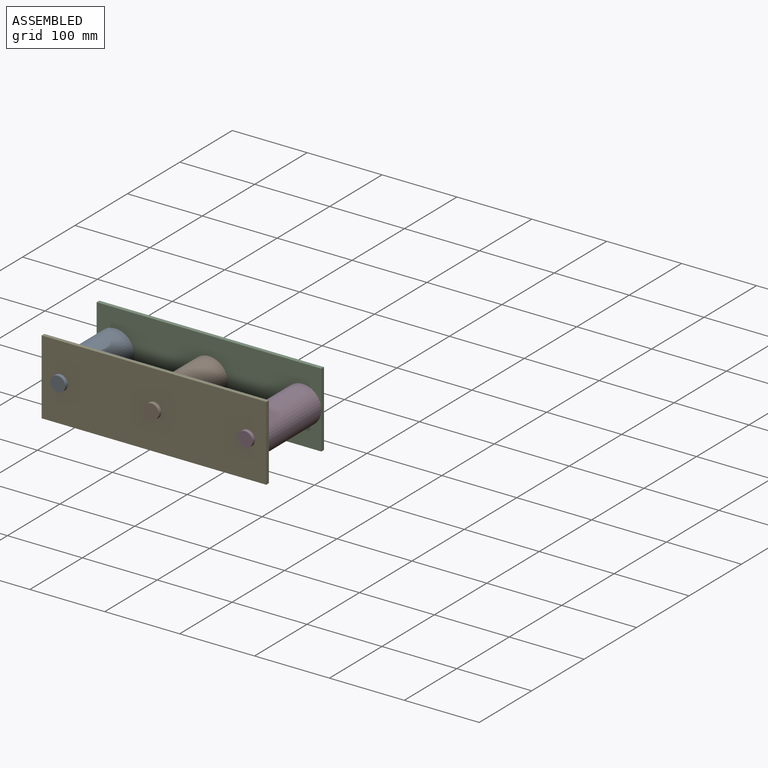
[diagram: assembled view]
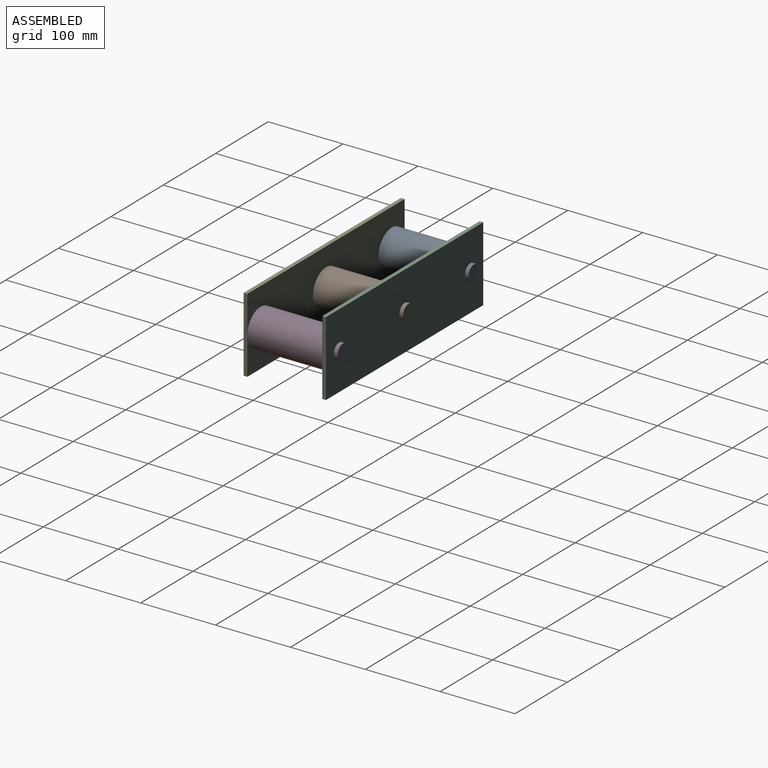
[diagram: assembled view, second angle]
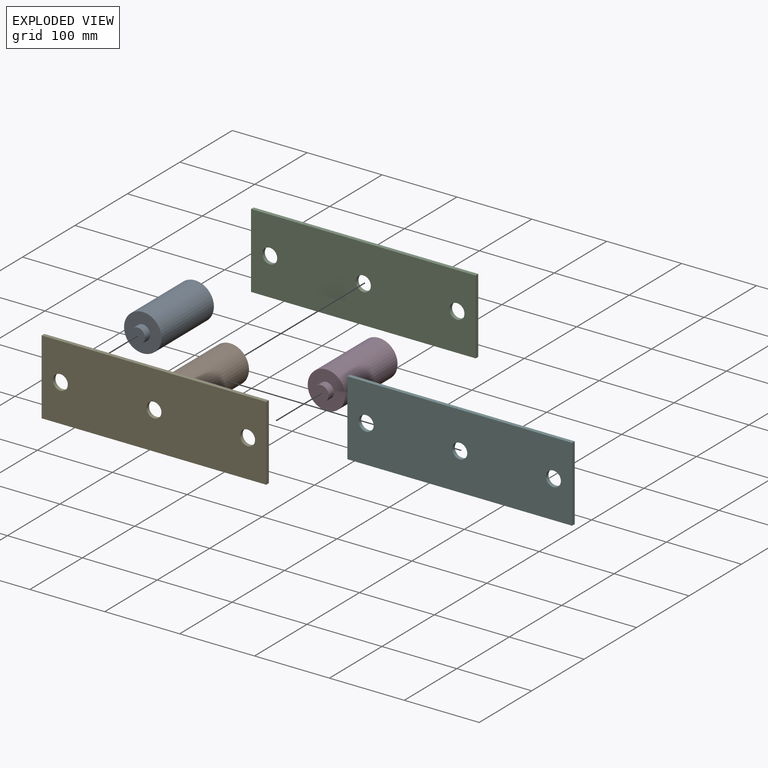
[diagram: exploded view]
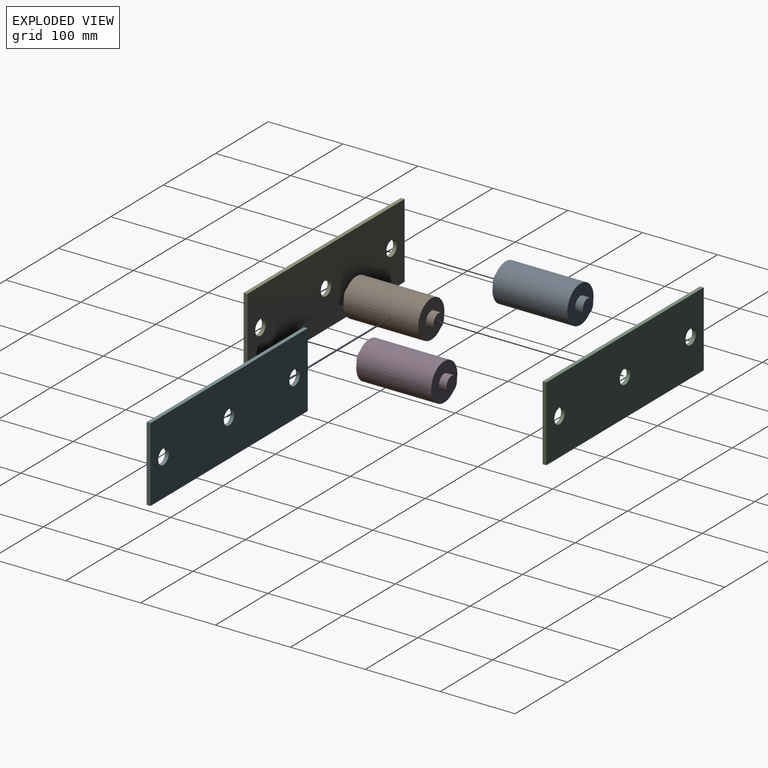
[diagram: exploded view, second angle]
ASSEMBLY  parts=6 mates=4
PART A: 7 faces, bbox 50x120x50 mm
  f0: cylinder r=10mm len=20mm, axis (0,1,0), area 628.3mm2, adj f1,f3
  f1: plane 20x20mm, normal (0,-1,0), area 314.2mm2, adj f0
  f2: cylinder r=25mm len=100mm, axis (0,1,0), area 15708mm2, adj f3,f4
  f3: plane 50x50mm, normal (0,-1,0), area 1649.3mm2, adj f0,f2
  f4: plane 50x50mm, normal (0,1,0), area 1649.3mm2, adj f2,f6
  f5: plane 20x20mm, normal (0,1,0), area 314.2mm2, adj f6
  f6: cylinder r=10mm len=20mm, axis (0,1,0), area 628.3mm2, adj f4,f5
PART B: same geometry as A
PART C: 9 faces, bbox 300x5x100 mm
  f0: plane 100x5mm, normal (1,0,0), area 500mm2, adj f1,f3,f7,f8
  f1: plane 300x5mm, normal (0,0,1), area 1500mm2, adj f0,f2,f7,f8
  f2: plane 100x5mm, normal (-1,0,0), area 500mm2, adj f1,f3,f7,f8
  f3: plane 300x5mm, normal (0,0,-1), area 1500mm2, adj f0,f2,f7,f8
  f4: cylinder r=10mm len=20mm, axis (0,-1,0), area 314.2mm2, adj f7,f8
  f5: cylinder r=10mm len=20mm, axis (0,-1,0), area 314.2mm2, adj f7,f8
  f6: cylinder r=10mm len=20mm, axis (0,-1,0), area 314.2mm2, adj f7,f8
  f7: plane 300x100mm, normal (0,-1,0), area 29057.5mm2, adj f0,f1,f2,f3,f4,f5,f6
  f8: plane 300x100mm, normal (0,1,0), area 29057.5mm2, adj f0,f1,f2,f3,f4,f5,f6
PART D: same geometry as A
PART E: same geometry as C
PART F: same geometry as C
PLACE A rot(axis=(0,-1,0),58.6deg) t=(-12.32,16.3,5.61)mm
PLACE B rot(axis=(0,1,0),24.7deg) t=(112.68,16.3,5.61)mm
PLACE C t=(-37.32,71.3,-44.39)mm fixed
PLACE D t=(237.68,16.3,5.61)mm
PLACE E t=(-37.32,-33.7,-44.39)mm
PLACE F t=(-37.32,71.3,-44.39)mm
MATE revolute E.f6 <-> B.f0  axis (0,-1,0) through (112.68,-38.7,5.61)mm
MATE revolute E.f4 <-> A.f0  axis (0,-1,0) through (-12.32,-38.7,5.61)mm
MATE revolute E.f5 <-> D.f0  axis (0,-1,0) through (237.68,-38.7,5.61)mm
MATE revolute D.f0 <-> C.f5  axis (0,1,0) through (237.68,71.3,5.61)mm
